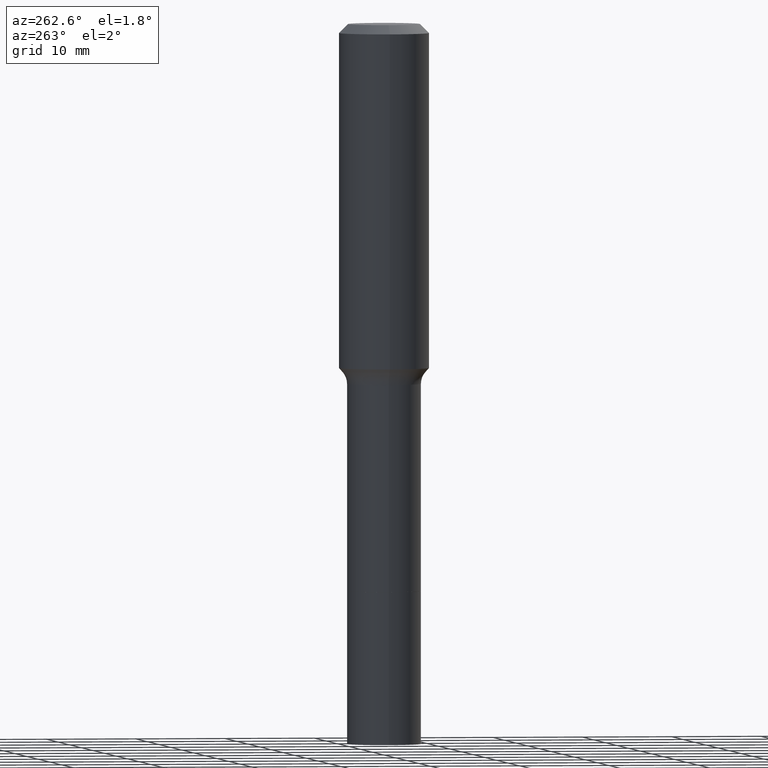
[diagram: clean part render]
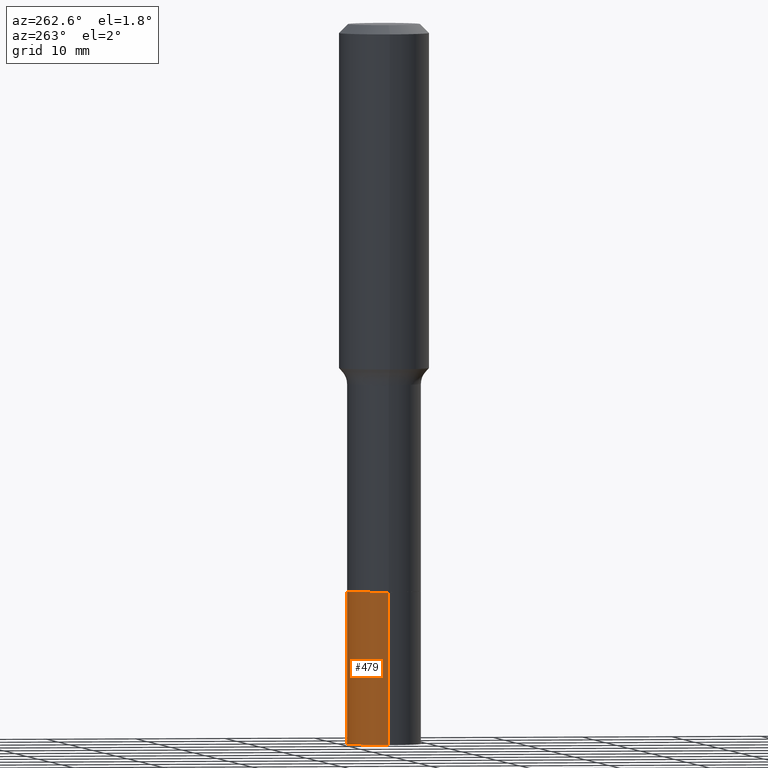
[diagram: same view with one face highlighted and labeled with its STEP entity id]
A machine part, auxiliary view. The second image highlights one B-rep face of the part: STEP entity #479.
In plain terms, the highlighted cylindrical surface (partial cylindrical patch) has radius 4.0996 mm, axis along (-0, 0, 1).
Its self-contained STEP definition (entity closure, byte-faithful):
#23 = AXIS2_PLACEMENT_3D ( 'NONE', #267, #470, #500 ) ;
#24 = VERTEX_POINT ( 'NONE', #504 ) ;
#41 = DIRECTION ( 'NONE',  ( -2.445468806185136597E-29, 3.491481338843145583E-15, 1.000000000000000000 ) ) ;
#91 = ORIENTED_EDGE ( 'NONE', *, *, #176, .T. ) ;
#134 = ORIENTED_EDGE ( 'NONE', *, *, #295, .T. ) ;
#137 = ORIENTED_EDGE ( 'NONE', *, *, #256, .F. ) ;
#146 = LINE ( 'NONE', #156, #285 ) ;
#149 = DIRECTION ( 'NONE',  ( -2.445468806185136877E-29, 3.491481338843145188E-15, 1.000000000000000000 ) ) ;
#156 = CARTESIAN_POINT ( 'NONE',  ( 0.1614000000000000989, -9.788018785312872751E-15, -2.480600000000000360 ) ) ;
#176 = EDGE_CURVE ( 'NONE', #449, #293, #275, .T. ) ;
#189 = AXIS2_PLACEMENT_3D ( 'NONE', #447, #41, #405 ) ;
#206 = DIRECTION ( 'NONE',  ( -2.445468806185136877E-29, 3.491481338843145188E-15, 1.000000000000000000 ) ) ;
#222 = CIRCLE ( 'NONE', #320, 0.1613999999999999879 ) ;
#235 = EDGE_LOOP ( 'NONE', ( #134, #91, #421, #137 ) ) ;
#240 = VECTOR ( 'NONE', #149, 39.37007874015748143 ) ;
#246 = DIRECTION ( 'NONE',  ( 1.000000000000000000, -6.982962677686271444E-15, 0.000000000000000000 ) ) ;
#256 = EDGE_CURVE ( 'NONE', #24, #260, #146, .T. ) ;
#260 = VERTEX_POINT ( 'NONE', #333 ) ;
#267 = CARTESIAN_POINT ( 'NONE',  ( 6.066229920622851108E-29, -8.660968609134307449E-15, -2.480600000000000360 ) ) ;
#275 = LINE ( 'NONE', #511, #240 ) ;
#285 = VECTOR ( 'NONE', #206, 39.37007874015748143 ) ;
#293 = VERTEX_POINT ( 'NONE', #297 ) ;
#294 = FACE_OUTER_BOUND ( 'NONE', #235, .T. ) ;
#295 = EDGE_CURVE ( 'NONE', #24, #449, #402, .T. ) ;
#297 = CARTESIAN_POINT ( 'NONE',  ( -0.1613999999999999879, -8.682053141460538265E-15, -2.480600000000000360 ) ) ;
#320 = AXIS2_PLACEMENT_3D ( 'NONE', #364, #362, #246 ) ;
#324 = EDGE_CURVE ( 'NONE', #260, #293, #222, .T. ) ;
#333 = CARTESIAN_POINT ( 'NONE',  ( 0.1613999999999999879, -9.788018785312872751E-15, -2.480600000000000360 ) ) ;
#362 = DIRECTION ( 'NONE',  ( -2.445468806185136597E-29, 3.491481338843145583E-15, 1.000000000000000000 ) ) ;
#364 = CARTESIAN_POINT ( 'NONE',  ( 6.066229920622851108E-29, -8.660968609134307449E-15, -2.480600000000000360 ) ) ;
#367 = CARTESIAN_POINT ( 'NONE',  ( -0.1614000000000001822, -8.682053141460536687E-15, -3.149600000000000399 ) ) ;
#402 = CIRCLE ( 'NONE', #189, 0.1614000000000001822 ) ;
#405 = DIRECTION ( 'NONE',  ( 1.000000000000000000, -6.982962677686262766E-15, 0.000000000000000000 ) ) ;
#421 = ORIENTED_EDGE ( 'NONE', *, *, #324, .F. ) ;
#447 = CARTESIAN_POINT ( 'NONE',  ( 7.702248551960706711E-29, -1.099676962482037231E-14, -3.149600000000000399 ) ) ;
#449 = VERTEX_POINT ( 'NONE', #367 ) ;
#455 = CYLINDRICAL_SURFACE ( 'NONE', #23, 0.1614000000000000989 ) ;
#470 = DIRECTION ( 'NONE',  ( -2.445468806185136597E-29, 3.491481338843145583E-15, 1.000000000000000000 ) ) ;
#479 = ADVANCED_FACE ( 'NONE', ( #294 ), #455, .T. ) ;
#500 = DIRECTION ( 'NONE',  ( 1.000000000000000000, -6.982962677686266711E-15, 0.000000000000000000 ) ) ;
#504 = CARTESIAN_POINT ( 'NONE',  ( 0.1614000000000001822, -1.212381980099893603E-14, -3.149600000000000399 ) ) ;
#511 = CARTESIAN_POINT ( 'NONE',  ( -0.1614000000000000989, -7.514152633617505835E-15, -2.480600000000000360 ) ) ;